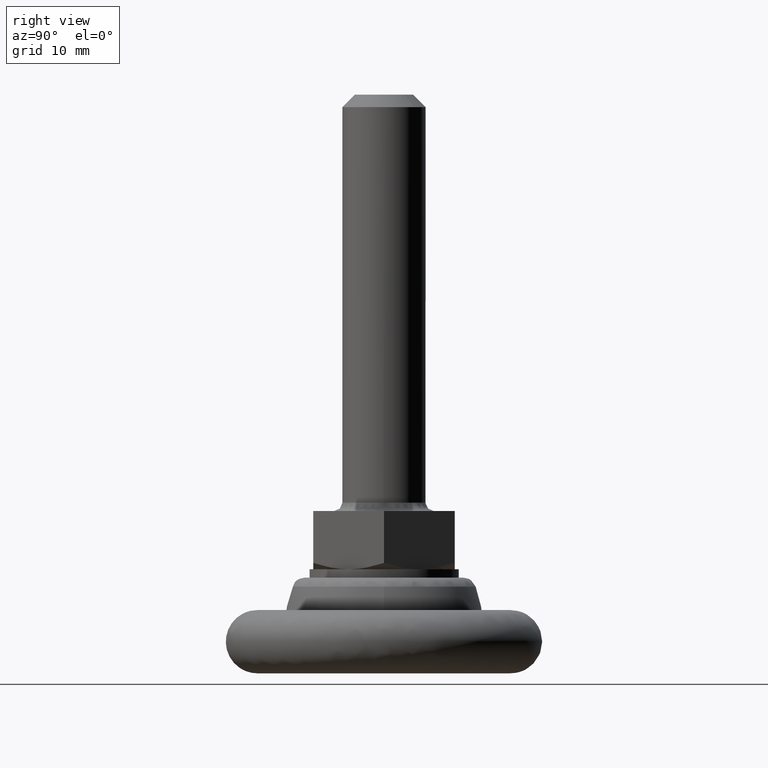
[diagram: clean part render]
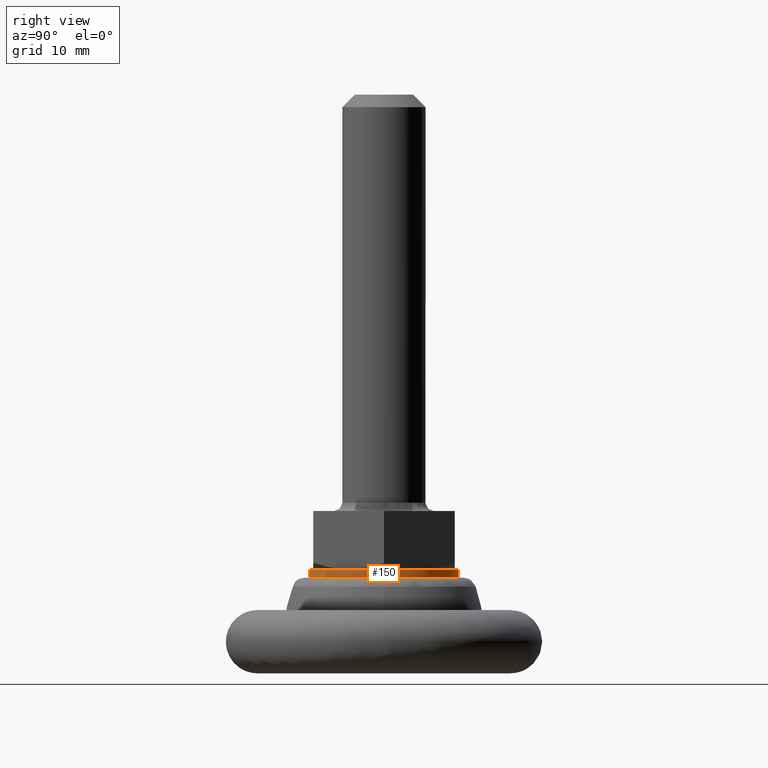
[diagram: same view with one face highlighted and labeled with its STEP entity id]
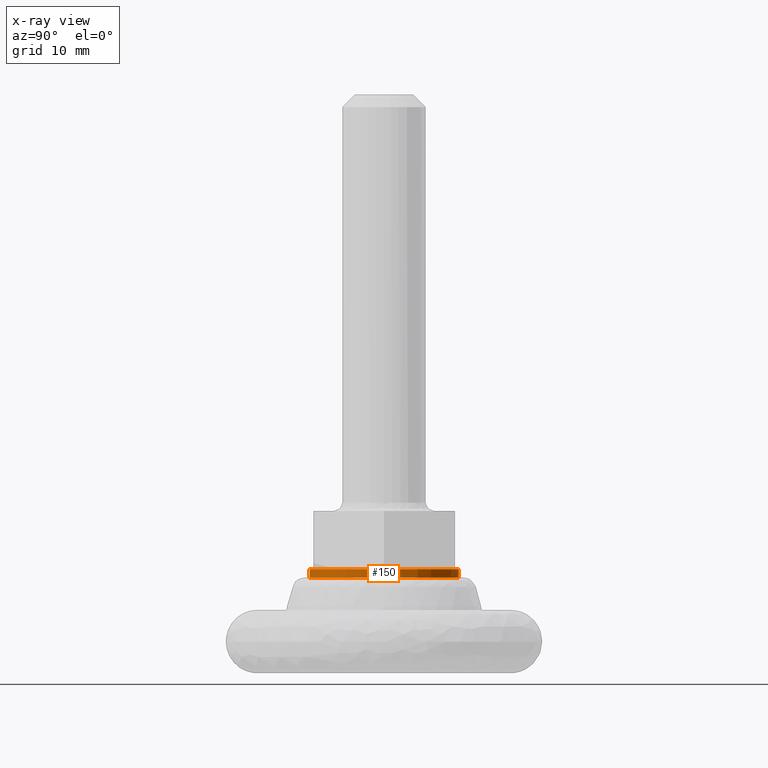
[diagram: x-ray of the same camera — body ghosted, the highlighted face saturated]
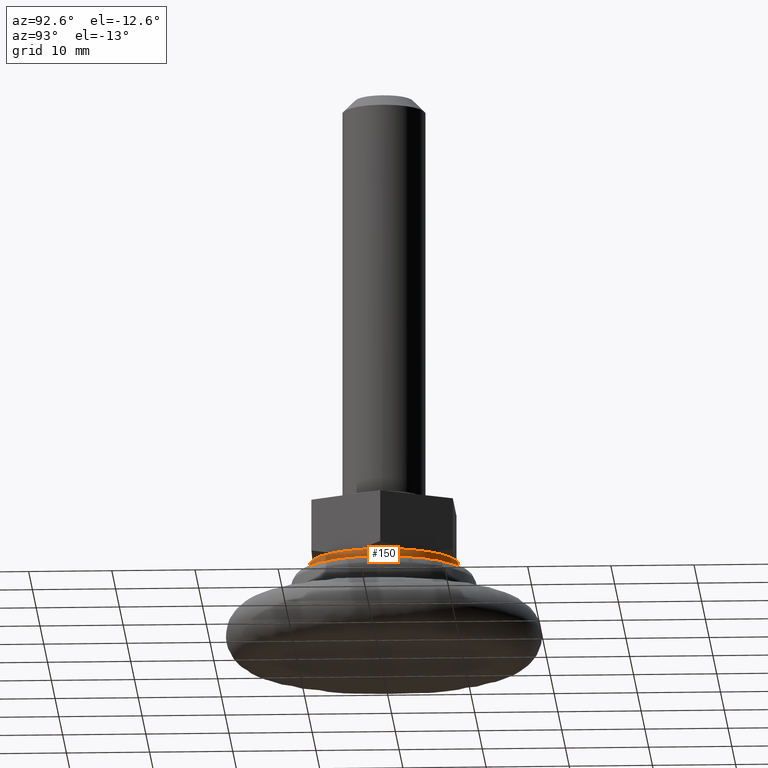
[diagram: same view with one face highlighted and labeled with its STEP entity id]
A machine part, right view. The second image highlights one B-rep face of the part: STEP entity #150.
The next image is the same camera in x-ray: the body ghosted, the highlighted face saturated — about 0% of this face is hidden behind the body in this view.
A second angle (auxiliary view) of the same face is appended — the face is thin or edge-on in the first view.
In plain terms, the highlighted face is a freeform B-spline surface patch.
Its self-contained STEP definition (entity closure, byte-faithful):
#44=CARTESIAN_POINT('',(-1.194935906268553,-8.921320913486710,11.474999999999840));
#45=CARTESIAN_POINT('',(-1.128435027419496,-8.929225550985702,11.474999999999833));
#46=CARTESIAN_POINT('',(-0.806532557741799,-8.967488539037451,11.474999999999833));
#47=CARTESIAN_POINT('',(-0.549436855813713,-8.983213185796799,11.474999999999829));
#48=CARTESIAN_POINT('',(8.433776329983086,-9.532650041610513,11.474999999999834));
#49=CARTESIAN_POINT('',(8.983213185796799,-0.549436855813713,11.474999999999829));
#50=CARTESIAN_POINT('',(9.532650041610513,8.433776329983086,11.474999999999834));
#51=CARTESIAN_POINT('',(0.484830633605754,8.987164671625061,11.474999999999834));
#52=CARTESIAN_POINT('',(0.420608188861288,8.991092684618106,11.474999999999840));
#53=CARTESIAN_POINT('',(-1.194935906268553,-8.921320913486710,12.525625000000007));
#54=CARTESIAN_POINT('',(-1.128435027419496,-8.929225550985702,12.525625000000010));
#55=CARTESIAN_POINT('',(-0.806532557741799,-8.967488539037451,12.525625000000010));
#56=CARTESIAN_POINT('',(-0.549436855813713,-8.983213185796799,12.525625000000010));
#57=CARTESIAN_POINT('',(8.433776329983086,-9.532650041610513,12.525625000000005));
#58=CARTESIAN_POINT('',(8.983213185796799,-0.549436855813713,12.525625000000010));
#59=CARTESIAN_POINT('',(9.532650041610513,8.433776329983086,12.525625000000005));
#60=CARTESIAN_POINT('',(0.484830633605754,8.987164671625061,12.525625000000009));
#61=CARTESIAN_POINT('',(0.420608188861288,8.991092684618106,12.525625000000009));
#69=(BOUNDED_SURFACE()B_SPLINE_SURFACE(2,1,((#44,#53),(#45,#54),(#46,#55),(#47,#56),(#48,#57),(#49,#58),(#50,#59),(#51,#60),(#52,#61)),.UNSPECIFIED.,.F.,.F.,.U.)B_SPLINE_SURFACE_WITH_KNOTS((3,1,2,2,1,3),(2,2),(0.0,0.152097005777994,0.748564535595252,15.660252781026671,30.571941026458081,30.724058862011880),(0.0,1.0),.UNSPECIFIED.)GEOMETRIC_REPRESENTATION_ITEM()RATIONAL_B_SPLINE_SURFACE(((0.972008860892400,0.972008860892400),(0.974757330843763,0.974757330843763),(0.988284271247462,0.988284271247462),(1.0,1.0),(0.707106781186548,0.707106781186548),(1.0,1.0),(0.707106781186548,0.707106781186548),(1.002987876473875,1.002987876473875),(1.005975752947750,1.005975752947750)))REPRESENTATION_ITEM('')SURFACE());
#70=CARTESIAN_POINT('',(-1.062306099535279,-8.937085976473876,12.500000000000050));
#71=VERTEX_POINT('',#70);
#72=CARTESIAN_POINT('',(9.0,0.0,12.500000000000000));
#73=VERTEX_POINT('',#72);
#74=CARTESIAN_POINT('',(-1.062306099535279,-8.937085976473876,12.500000000000050));
#75=CARTESIAN_POINT('',(-0.533016060042163,-9.0,12.500000000000000));
#76=CARTESIAN_POINT('',(0.0,-9.0,12.500000000000000));
#77=CARTESIAN_POINT('',(9.0,-9.0,12.499999999999998));
#78=CARTESIAN_POINT('',(9.0,0.0,12.500000000000000));
#86=(BOUNDED_CURVE()B_SPLINE_CURVE(2,(#74,#75,#76,#77,#78),.UNSPECIFIED.,.F.,.U.)B_SPLINE_CURVE_WITH_KNOTS((3,2,3),(0.229562511570333,0.250000000000000,0.500000000000000),.UNSPECIFIED.)CURVE()GEOMETRIC_REPRESENTATION_ITEM()RATIONAL_B_SPLINE_CURVE((0.956026828776646,0.976055992917488,1.0,0.707106781186547,1.0))REPRESENTATION_ITEM(''));
#87=EDGE_CURVE('',#71,#73,#86,.T.);
#88=ORIENTED_EDGE('',*,*,#87,.F.);
#89=CARTESIAN_POINT('',(-1.062306124405167,-8.937085973517725,11.499999999999840));
#90=VERTEX_POINT('',#89);
#91=CARTESIAN_POINT('',(-1.062306124405167,-8.937085973517725,11.499999999999840));
#92=CARTESIAN_POINT('',(-1.062306099535279,-8.937085976473876,12.500000000000050));
#93=QUASI_UNIFORM_CURVE('',1,(#91,#92),.UNSPECIFIED.,.F.,.U.);
#94=EDGE_CURVE('',#90,#71,#93,.T.);
#95=ORIENTED_EDGE('',*,*,#94,.F.);
#96=CARTESIAN_POINT('',(9.0,0.0,11.499999999999840));
#97=VERTEX_POINT('',#96);
#98=CARTESIAN_POINT('',(-1.062306124405168,-8.937085973517725,11.499999999999844));
#99=CARTESIAN_POINT('',(-0.533016072608566,-9.0,11.499999999999838));
#100=CARTESIAN_POINT('',(0.0,-9.0,11.499999999999840));
#101=CARTESIAN_POINT('',(9.0,-9.0,11.499999999999840));
#102=CARTESIAN_POINT('',(9.0,0.0,11.499999999999840));
#110=(BOUNDED_CURVE()B_SPLINE_CURVE(2,(#98,#99,#100,#101,#102),.UNSPECIFIED.,.F.,.U.)B_SPLINE_CURVE_WITH_KNOTS((3,2,3),(0.229562511100035,0.250000000000000,0.500000000000000),.UNSPECIFIED.)CURVE()GEOMETRIC_REPRESENTATION_ITEM()RATIONAL_B_SPLINE_CURVE((0.956026827854843,0.976055992366500,1.0,0.707106781186547,1.0))REPRESENTATION_ITEM(''));
#111=EDGE_CURVE('',#90,#97,#110,.T.);
#112=ORIENTED_EDGE('',*,*,#111,.T.);
#113=CARTESIAN_POINT('',(0.549421257157210,8.983214139824316,11.499999999999840));
#114=VERTEX_POINT('',#113);
#115=CARTESIAN_POINT('',(9.0,0.0,11.499999999999840));
#116=CARTESIAN_POINT('',(9.000000000000002,8.466369330805065,11.499999999999840));
#117=CARTESIAN_POINT('',(0.549421257157210,8.983214139824316,11.499999999999842));
#125=(BOUNDED_CURVE()B_SPLINE_CURVE(2,(#115,#116,#117),.UNSPECIFIED.,.F.,.U.)B_SPLINE_CURVE_WITH_KNOTS((3,3),(0.500000000000000,0.739333261856221),.UNSPECIFIED.)CURVE()GEOMETRIC_REPRESENTATION_ITEM()RATIONAL_B_SPLINE_CURVE((1.0,0.719603642263234,0.976072683804420))REPRESENTATION_ITEM(''));
#126=EDGE_CURVE('',#97,#114,#125,.T.);
#127=ORIENTED_EDGE('',*,*,#126,.T.);
#128=CARTESIAN_POINT('',(0.549421062475073,8.983214151730904,12.499999999998440));
#129=VERTEX_POINT('',#128);
#130=CARTESIAN_POINT('',(0.549421257157210,8.983214139824316,11.499999999999840));
#131=CARTESIAN_POINT('',(0.549421062475073,8.983214151730904,12.499999999998440));
#132=QUASI_UNIFORM_CURVE('',1,(#130,#131),.UNSPECIFIED.,.F.,.U.);
#133=EDGE_CURVE('',#114,#129,#132,.T.);
#134=ORIENTED_EDGE('',*,*,#133,.T.);
#135=CARTESIAN_POINT('',(9.0,0.0,12.500000000000000));
#136=CARTESIAN_POINT('',(8.999999999999998,8.466369514629092,12.499999999999998));
#137=CARTESIAN_POINT('',(0.549421062475073,8.983214151730904,12.499999999998440));
#145=(BOUNDED_CURVE()B_SPLINE_CURVE(2,(#135,#136,#137),.UNSPECIFIED.,.F.,.U.)B_SPLINE_CURVE_WITH_KNOTS((3,3),(0.500000000000000,0.739333265595617),.UNSPECIFIED.)CURVE()GEOMETRIC_REPRESENTATION_ITEM()RATIONAL_B_SPLINE_CURVE((1.0,0.719603637882259,0.976072691818679))REPRESENTATION_ITEM(''));
#146=EDGE_CURVE('',#73,#129,#145,.T.);
#147=ORIENTED_EDGE('',*,*,#146,.F.);
#148=EDGE_LOOP('',(#88,#95,#112,#127,#134,#147));
#149=FACE_OUTER_BOUND('',#148,.T.);
#150=ADVANCED_FACE('',(#149),#69,.T.);